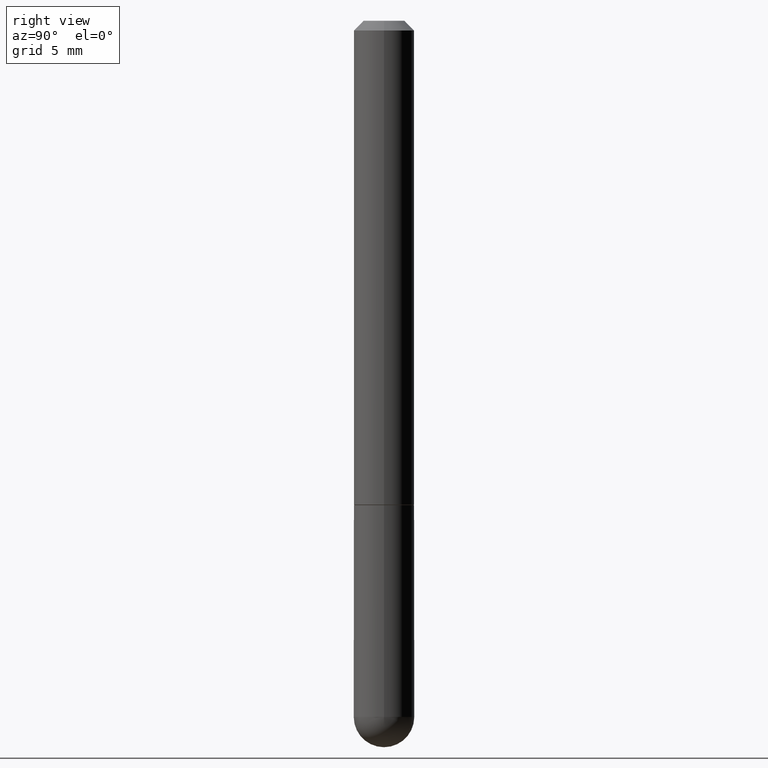
[diagram: clean part render]
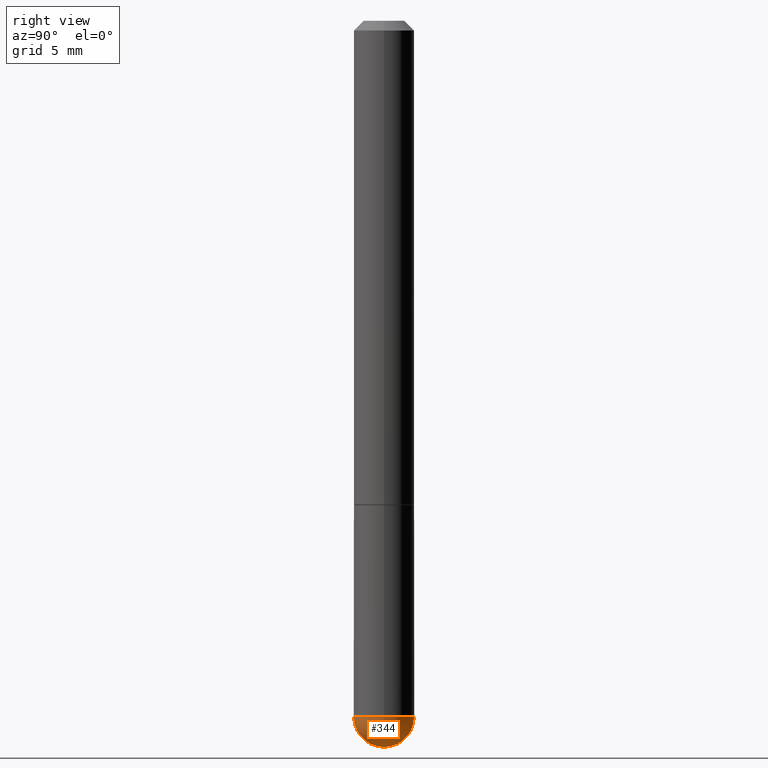
[diagram: same view with one face highlighted and labeled with its STEP entity id]
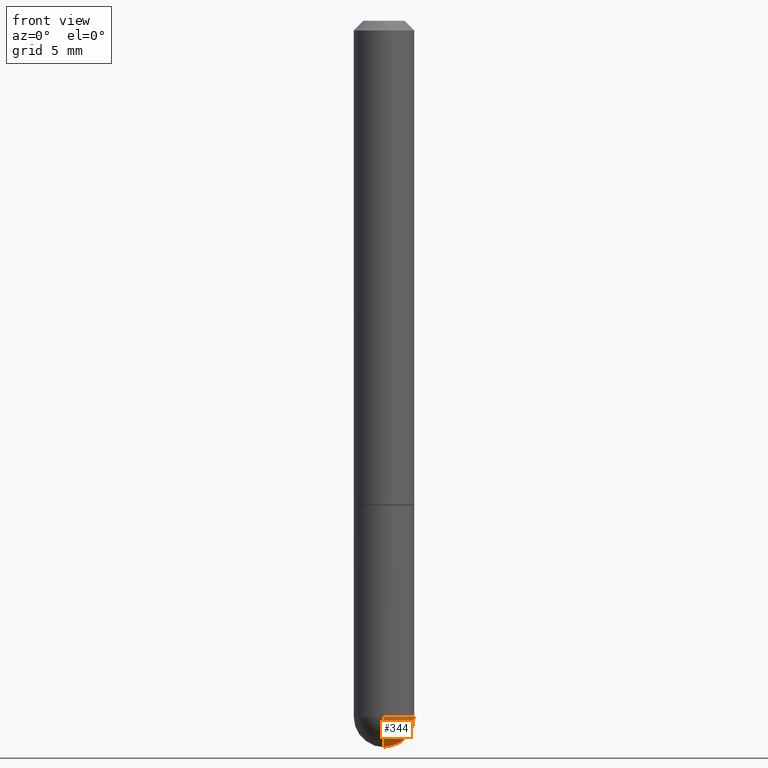
[diagram: same view with one face highlighted and labeled with its STEP entity id]
A machine part, right view. The second image highlights one B-rep face of the part: STEP entity #344.
A second angle (front view) of the same face is appended — the face is thin or edge-on in the first view.
In plain terms, the highlighted spherical surface has radius 1.5875 mm.
Its self-contained STEP definition (entity closure, byte-faithful):
#9 = AXIS2_PLACEMENT_3D ( 'NONE', #308, #77, #178 ) ;
#34 = CARTESIAN_POINT ( 'NONE',  ( 3.184241630977247611E-29, -5.493186792727071849E-15, -1.437500000000000000 ) ) ;
#36 = CARTESIAN_POINT ( 'NONE',  ( 4.364351673554256397E-16, 0.06249999999999480971, -1.437500000000000444 ) ) ;
#71 = SPHERICAL_SURFACE ( 'NONE', #348, 0.06250000000000018041 ) ;
#72 = ORIENTED_EDGE ( 'NONE', *, *, #215, .F. ) ;
#77 = DIRECTION ( 'NONE',  ( -2.445468806185136597E-29, 3.491481338843145583E-15, 1.000000000000000000 ) ) ;
#83 = CIRCLE ( 'NONE', #188, 0.06250000000000018041 ) ;
#87 = EDGE_CURVE ( 'NONE', #292, #385, #83, .T. ) ;
#95 = EDGE_CURVE ( 'NONE', #400, #217, #287, .T. ) ;
#100 = AXIS2_PLACEMENT_3D ( 'NONE', #362, #211, #243 ) ;
#107 = ORIENTED_EDGE ( 'NONE', *, *, #95, .F. ) ;
#140 = DIRECTION ( 'NONE',  ( 1.000000000000000000, -6.982962677686265922E-15, 4.883557194083112340E-29 ) ) ;
#146 = CIRCLE ( 'NONE', #100, 0.06250000000000018041 ) ;
#178 = DIRECTION ( 'NONE',  ( 1.000000000000000000, -6.982962677686268288E-15, 0.000000000000000000 ) ) ;
#181 = CARTESIAN_POINT ( 'NONE',  ( 3.515361408891134418E-29, -5.019004424587023131E-15, -1.437500000000000222 ) ) ;
#188 = AXIS2_PLACEMENT_3D ( 'NONE', #214, #140, #338 ) ;
#199 = DIRECTION ( 'NONE',  ( 6.982962677686265922E-15, 1.000000000000000000, -4.370956789862807739E-15 ) ) ;
#201 = FACE_OUTER_BOUND ( 'NONE', #261, .T. ) ;
#211 = DIRECTION ( 'NONE',  ( -1.000000000000000000, 7.105427357601001070E-15, -4.926315508542082329E-29 ) ) ;
#214 = CARTESIAN_POINT ( 'NONE',  ( 3.184241630977247611E-29, -5.493186792727071849E-15, -1.437500000000000000 ) ) ;
#215 = EDGE_CURVE ( 'NONE', #217, #385, #222, .T. ) ;
#217 = VERTEX_POINT ( 'NONE', #305 ) ;
#222 = CIRCLE ( 'NONE', #231, 0.06249999999999995143 ) ;
#227 = EDGE_CURVE ( 'NONE', #292, #400, #146, .T. ) ;
#229 = DIRECTION ( 'NONE',  ( -1.000000000000000000, 6.982962677686265922E-15, -4.883557194083112340E-29 ) ) ;
#231 = AXIS2_PLACEMENT_3D ( 'NONE', #181, #397, #392 ) ;
#235 = ORIENTED_EDGE ( 'NONE', *, *, #87, .T. ) ;
#243 = DIRECTION ( 'NONE',  ( -7.105427357601001859E-15, -1.000000000000000000, 0.000000000000000000 ) ) ;
#250 = CARTESIAN_POINT ( 'NONE',  ( 3.339755826017505008E-29, -5.707577355157432999E-15, -1.500000000000000222 ) ) ;
#261 = EDGE_LOOP ( 'NONE', ( #371, #235, #72, #107 ) ) ;
#287 = CIRCLE ( 'NONE', #9, 0.06249999999999995143 ) ;
#292 = VERTEX_POINT ( 'NONE', #250 ) ;
#305 = CARTESIAN_POINT ( 'NONE',  ( 0.06249999999999995143, -4.691678049070475040E-15, -1.437500000000000222 ) ) ;
#308 = CARTESIAN_POINT ( 'NONE',  ( 3.515361408891134418E-29, -5.019004424587023131E-15, -1.437500000000000222 ) ) ;
#318 = CARTESIAN_POINT ( 'NONE',  ( -4.440892098500294840E-16, -0.06250000000000532907, -1.437500000000000000 ) ) ;
#338 = DIRECTION ( 'NONE',  ( 6.982962677686266711E-15, 1.000000000000000000, 0.000000000000000000 ) ) ;
#344 = ADVANCED_FACE ( 'NONE', ( #201 ), #71, .T. ) ;
#348 = AXIS2_PLACEMENT_3D ( 'NONE', #34, #229, #199 ) ;
#362 = CARTESIAN_POINT ( 'NONE',  ( 3.184241630977247611E-29, -5.493186792727071849E-15, -1.437500000000000000 ) ) ;
#371 = ORIENTED_EDGE ( 'NONE', *, *, #227, .F. ) ;
#385 = VERTEX_POINT ( 'NONE', #36 ) ;
#392 = DIRECTION ( 'NONE',  ( 1.000000000000000000, -6.982962677686268288E-15, 0.000000000000000000 ) ) ;
#397 = DIRECTION ( 'NONE',  ( -2.445468806185136597E-29, 3.491481338843145583E-15, 1.000000000000000000 ) ) ;
#400 = VERTEX_POINT ( 'NONE', #318 ) ;